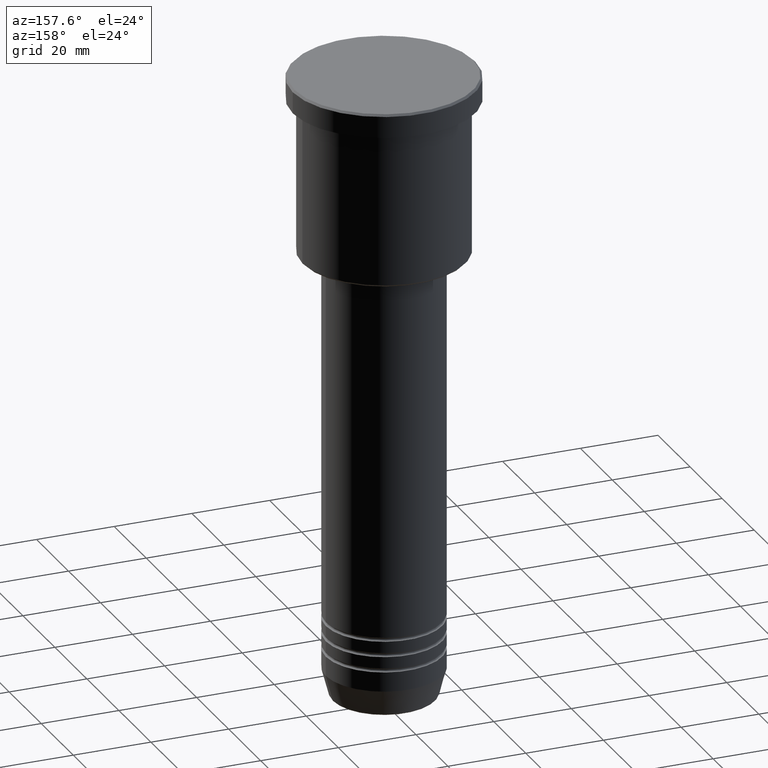
[diagram: clean part render]
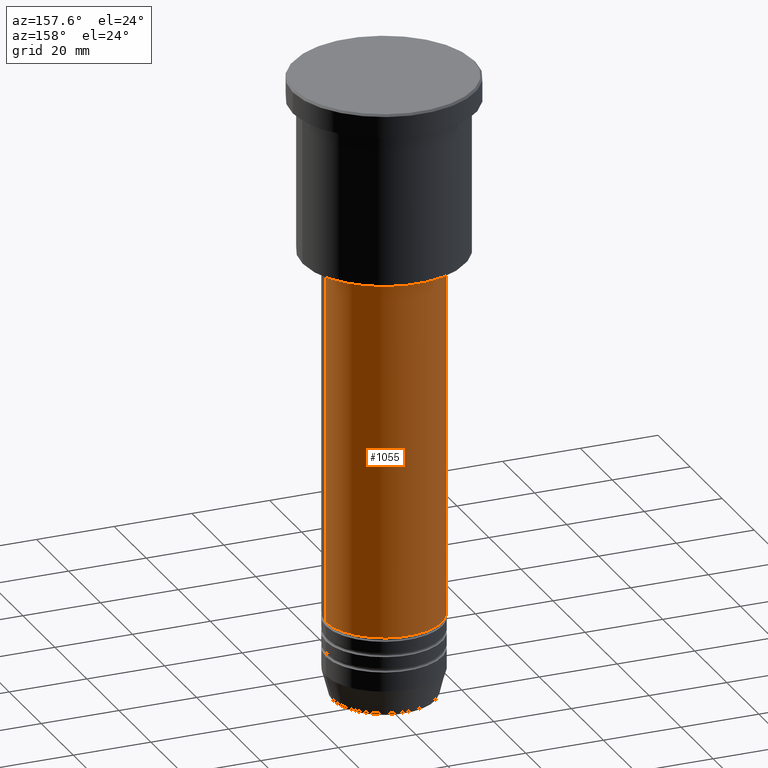
[diagram: same view with one face highlighted and labeled with its STEP entity id]
A machine part, auxiliary view. The second image highlights one B-rep face of the part: STEP entity #1055.
In plain terms, the highlighted cylindrical surface (partial cylindrical patch) has radius 15 mm, axis along (-0, -0, 1).
Its self-contained STEP definition (entity closure, byte-faithful):
#13 = VECTOR ( 'NONE', #710, 1000.000000000000000 ) ;
#46 = LINE ( 'NONE', #214, #351 ) ;
#92 = CARTESIAN_POINT ( 'NONE',  ( -15.00000000000000000, 1.836970198721029589E-15, -139.9999999999999147 ) ) ;
#114 = CARTESIAN_POINT ( 'NONE',  ( 15.00000000000000000, 0.000000000000000000, -47.00000000000000711 ) ) ;
#118 = ORIENTED_EDGE ( 'NONE', *, *, #812, .T. ) ;
#119 = DIRECTION ( 'NONE',  ( -0.000000000000000000, -0.000000000000000000, 1.000000000000000000 ) ) ;
#125 = DIRECTION ( 'NONE',  ( -0.000000000000000000, -0.000000000000000000, 1.000000000000000000 ) ) ;
#153 = ORIENTED_EDGE ( 'NONE', *, *, #407, .F. ) ;
#183 = AXIS2_PLACEMENT_3D ( 'NONE', #952, #125, #497 ) ;
#214 = CARTESIAN_POINT ( 'NONE',  ( -15.00000000000000000, 1.836970198721029589E-15, 0.000000000000000000 ) ) ;
#216 = CARTESIAN_POINT ( 'NONE',  ( 15.00000000000000000, 0.000000000000000000, -139.9999999999999147 ) ) ;
#226 = DIRECTION ( 'NONE',  ( -0.000000000000000000, -0.000000000000000000, 1.000000000000000000 ) ) ;
#257 = AXIS2_PLACEMENT_3D ( 'NONE', #976, #1143, #960 ) ;
#315 = CIRCLE ( 'NONE', #1139, 15.00000000000000000 ) ;
#320 = ORIENTED_EDGE ( 'NONE', *, *, #414, .T. ) ;
#351 = VECTOR ( 'NONE', #226, 1000.000000000000000 ) ;
#407 = EDGE_CURVE ( 'NONE', #1048, #863, #872, .T. ) ;
#413 = DIRECTION ( 'NONE',  ( 1.000000000000000000, 0.000000000000000000, 0.000000000000000000 ) ) ;
#414 = EDGE_CURVE ( 'NONE', #658, #863, #46, .T. ) ;
#443 = CARTESIAN_POINT ( 'NONE',  ( -15.00000000000000000, 1.836970198721029589E-15, -47.00000000000000711 ) ) ;
#482 = FACE_OUTER_BOUND ( 'NONE', #773, .T. ) ;
#497 = DIRECTION ( 'NONE',  ( 1.000000000000000000, 0.000000000000000000, 0.000000000000000000 ) ) ;
#578 = EDGE_CURVE ( 'NONE', #706, #1048, #623, .T. ) ;
#581 = CYLINDRICAL_SURFACE ( 'NONE', #183, 15.00000000000000000 ) ;
#623 = LINE ( 'NONE', #906, #13 ) ;
#640 = ORIENTED_EDGE ( 'NONE', *, *, #578, .F. ) ;
#658 = VERTEX_POINT ( 'NONE', #92 ) ;
#706 = VERTEX_POINT ( 'NONE', #216 ) ;
#710 = DIRECTION ( 'NONE',  ( -0.000000000000000000, -0.000000000000000000, 1.000000000000000000 ) ) ;
#756 = CARTESIAN_POINT ( 'NONE',  ( 0.000000000000000000, 0.000000000000000000, -139.9999999999999147 ) ) ;
#773 = EDGE_LOOP ( 'NONE', ( #118, #320, #153, #640 ) ) ;
#812 = EDGE_CURVE ( 'NONE', #706, #658, #315, .T. ) ;
#863 = VERTEX_POINT ( 'NONE', #443 ) ;
#872 = CIRCLE ( 'NONE', #257, 15.00000000000000000 ) ;
#906 = CARTESIAN_POINT ( 'NONE',  ( 15.00000000000000000, 0.000000000000000000, 0.000000000000000000 ) ) ;
#952 = CARTESIAN_POINT ( 'NONE',  ( 0.000000000000000000, 0.000000000000000000, 0.000000000000000000 ) ) ;
#960 = DIRECTION ( 'NONE',  ( 1.000000000000000000, 0.000000000000000000, 0.000000000000000000 ) ) ;
#976 = CARTESIAN_POINT ( 'NONE',  ( 0.000000000000000000, 0.000000000000000000, -47.00000000000000711 ) ) ;
#1048 = VERTEX_POINT ( 'NONE', #114 ) ;
#1055 = ADVANCED_FACE ( 'NONE', ( #482 ), #581, .T. ) ;
#1139 = AXIS2_PLACEMENT_3D ( 'NONE', #756, #119, #413 ) ;
#1143 = DIRECTION ( 'NONE',  ( -0.000000000000000000, -0.000000000000000000, 1.000000000000000000 ) ) ;